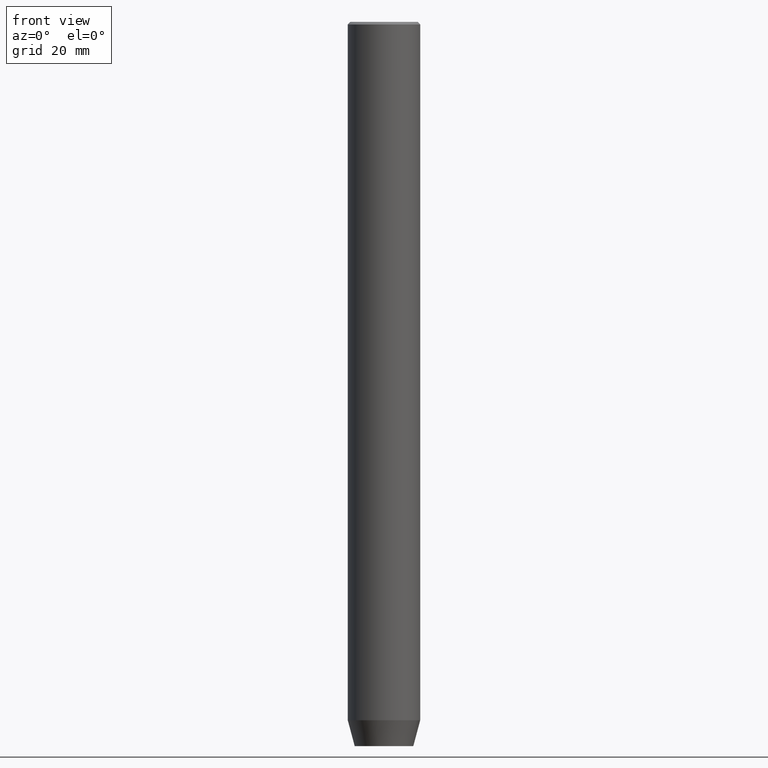
[diagram: clean part render]
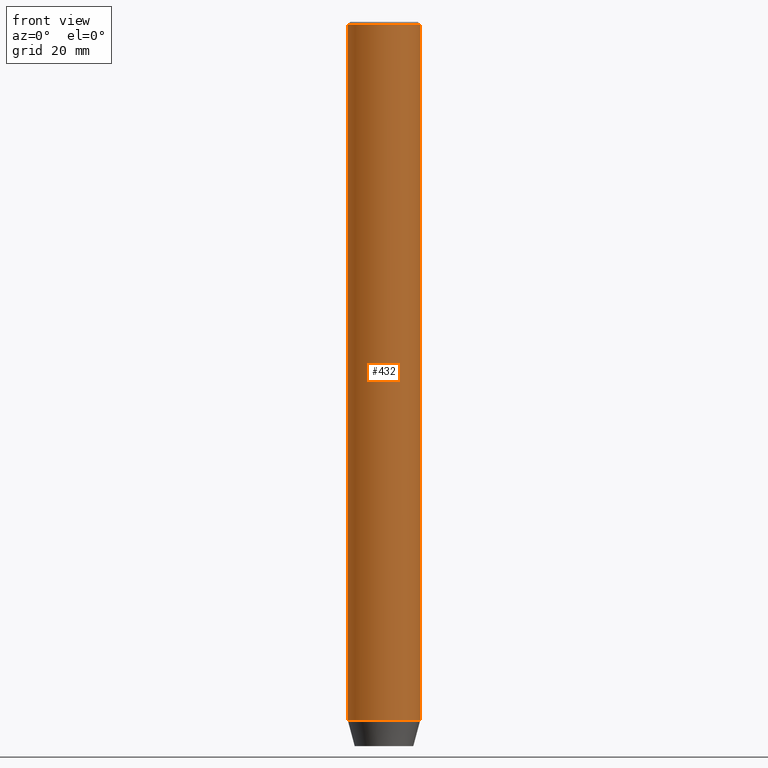
[diagram: same view with one face highlighted and labeled with its STEP entity id]
A machine part, front view. The second image highlights one B-rep face of the part: STEP entity #432.
In plain terms, the highlighted cylindrical surface (edge-blend (fillet) strip) has radius 7 mm, axis along (-0, -0, 1).
Its self-contained STEP definition (entity closure, byte-faithful):
#3 = CARTESIAN_POINT ( 'NONE',  ( 0.000000000000000000, 0.000000000000000000, 0.000000000000000000 ) ) ;
#8 = DIRECTION ( 'NONE',  ( 1.000000000000000000, 0.000000000000000000, 0.000000000000000000 ) ) ;
#34 = CARTESIAN_POINT ( 'NONE',  ( 7.000000000000000000, 0.000000000000000000, -0.4999999999999908962 ) ) ;
#41 = CYLINDRICAL_SURFACE ( 'NONE', #441, 7.000000000000000000 ) ;
#59 = CIRCLE ( 'NONE', #369, 7.000000000000000000 ) ;
#138 = FACE_OUTER_BOUND ( 'NONE', #259, .T. ) ;
#156 = LINE ( 'NONE', #518, #339 ) ;
#158 = VERTEX_POINT ( 'NONE', #316 ) ;
#188 = DIRECTION ( 'NONE',  ( -0.000000000000000000, -0.000000000000000000, 1.000000000000000000 ) ) ;
#194 = DIRECTION ( 'NONE',  ( 1.000000000000000000, 0.000000000000000000, 0.000000000000000000 ) ) ;
#197 = CARTESIAN_POINT ( 'NONE',  ( -7.000000000000000000, 8.572527594031473190E-16, -135.0000000000000000 ) ) ;
#200 = ORIENTED_EDGE ( 'NONE', *, *, #284, .F. ) ;
#222 = CARTESIAN_POINT ( 'NONE',  ( 0.000000000000000000, 0.000000000000000000, -0.4999999999999908962 ) ) ;
#243 = CARTESIAN_POINT ( 'NONE',  ( 0.000000000000000000, 0.000000000000000000, -135.0000000000000000 ) ) ;
#246 = DIRECTION ( 'NONE',  ( -0.000000000000000000, -0.000000000000000000, 1.000000000000000000 ) ) ;
#253 = LINE ( 'NONE', #428, #410 ) ;
#257 = EDGE_CURVE ( 'NONE', #465, #158, #430, .T. ) ;
#259 = EDGE_LOOP ( 'NONE', ( #200, #490, #304, #556 ) ) ;
#284 = EDGE_CURVE ( 'NONE', #465, #585, #156, .T. ) ;
#290 = AXIS2_PLACEMENT_3D ( 'NONE', #243, #335, #8 ) ;
#294 = EDGE_CURVE ( 'NONE', #158, #315, #253, .T. ) ;
#304 = ORIENTED_EDGE ( 'NONE', *, *, #294, .T. ) ;
#315 = VERTEX_POINT ( 'NONE', #34 ) ;
#316 = CARTESIAN_POINT ( 'NONE',  ( 7.000000000000000000, 0.000000000000000000, -135.0000000000000000 ) ) ;
#335 = DIRECTION ( 'NONE',  ( -0.000000000000000000, -0.000000000000000000, 1.000000000000000000 ) ) ;
#339 = VECTOR ( 'NONE', #246, 1000.000000000000000 ) ;
#341 = DIRECTION ( 'NONE',  ( -0.000000000000000000, -0.000000000000000000, 1.000000000000000000 ) ) ;
#367 = EDGE_CURVE ( 'NONE', #315, #585, #59, .T. ) ;
#369 = AXIS2_PLACEMENT_3D ( 'NONE', #222, #571, #394 ) ;
#394 = DIRECTION ( 'NONE',  ( 1.000000000000000000, 0.000000000000000000, 0.000000000000000000 ) ) ;
#410 = VECTOR ( 'NONE', #341, 1000.000000000000000 ) ;
#428 = CARTESIAN_POINT ( 'NONE',  ( 7.000000000000000000, 0.000000000000000000, 0.000000000000000000 ) ) ;
#430 = CIRCLE ( 'NONE', #290, 7.000000000000000000 ) ;
#432 = ADVANCED_FACE ( 'NONE', ( #138 ), #41, .T. ) ;
#441 = AXIS2_PLACEMENT_3D ( 'NONE', #3, #188, #194 ) ;
#446 = CARTESIAN_POINT ( 'NONE',  ( -7.000000000000000000, 8.572527594031473190E-16, -0.4999999999999908962 ) ) ;
#465 = VERTEX_POINT ( 'NONE', #197 ) ;
#490 = ORIENTED_EDGE ( 'NONE', *, *, #257, .T. ) ;
#518 = CARTESIAN_POINT ( 'NONE',  ( -7.000000000000000000, 8.572527594031473190E-16, 0.000000000000000000 ) ) ;
#556 = ORIENTED_EDGE ( 'NONE', *, *, #367, .T. ) ;
#571 = DIRECTION ( 'NONE',  ( 0.000000000000000000, 0.000000000000000000, -1.000000000000000000 ) ) ;
#585 = VERTEX_POINT ( 'NONE', #446 ) ;